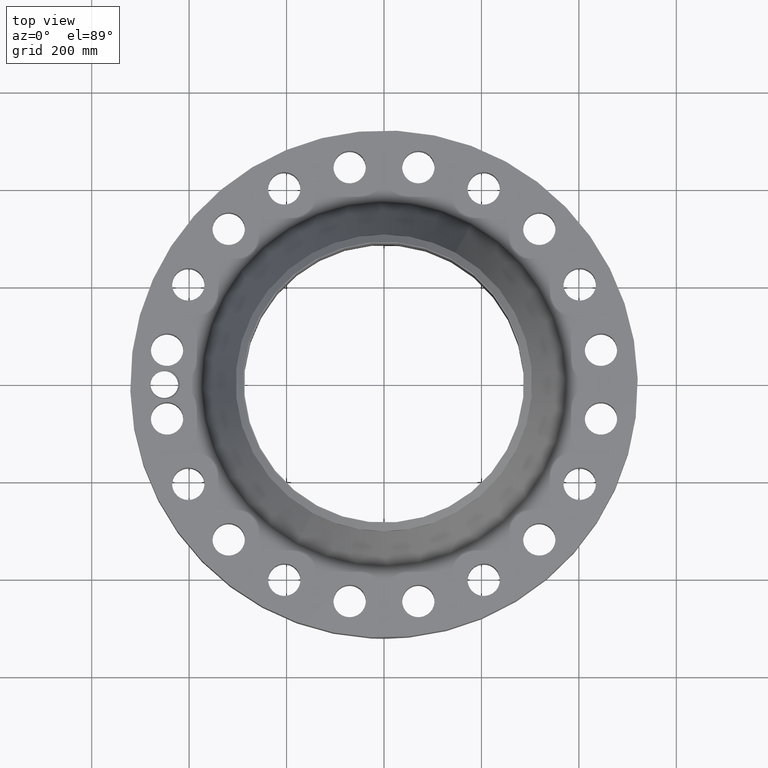
[diagram: clean part render]
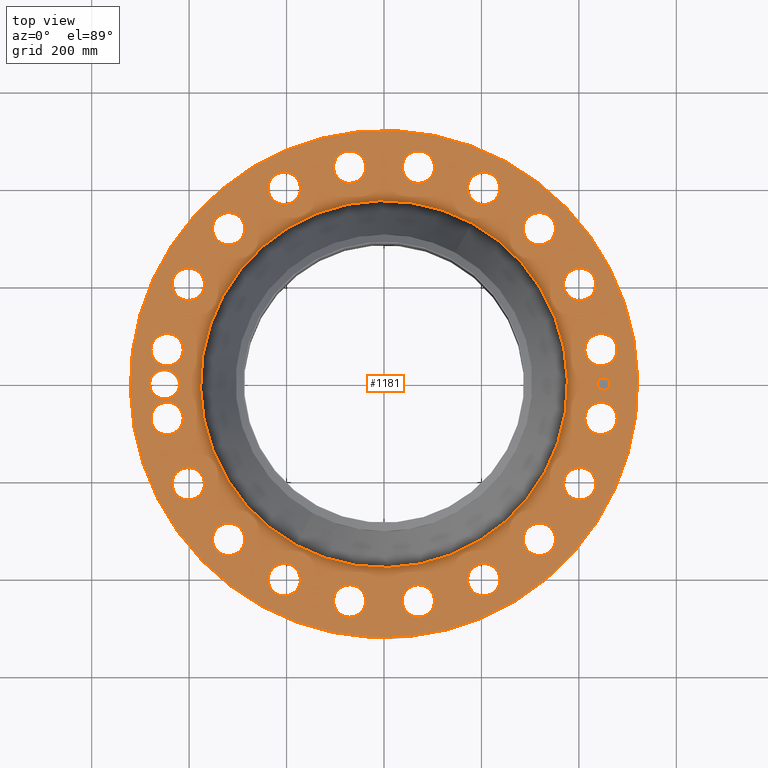
[diagram: same view with one face highlighted and labeled with its STEP entity id]
A machine part, top view. The second image highlights one B-rep face of the part: STEP entity #1181.
In plain terms, the highlighted planar face has unit normal (0, 0, -1).
Its self-contained STEP definition (entity closure, byte-faithful):
#58=AXIS2_PLACEMENT_3D('Circle Axis2P3D',#56,#57,$) ;
#618=AXIS2_PLACEMENT_3D('Circle Axis2P3D',#616,#617,$) ;
#718=AXIS2_PLACEMENT_3D('Plane Axis2P3D',#715,#716,#717) ;
#769=AXIS2_PLACEMENT_3D('Circle Axis2P3D',#767,#768,$) ;
#776=AXIS2_PLACEMENT_3D('Circle Axis2P3D',#774,#775,$) ;
#787=AXIS2_PLACEMENT_3D('Circle Axis2P3D',#785,#786,$) ;
#796=AXIS2_PLACEMENT_3D('Circle Axis2P3D',#794,#795,$) ;
#805=AXIS2_PLACEMENT_3D('Circle Axis2P3D',#803,#804,$) ;
#814=AXIS2_PLACEMENT_3D('Circle Axis2P3D',#812,#813,$) ;
#823=AXIS2_PLACEMENT_3D('Circle Axis2P3D',#821,#822,$) ;
#832=AXIS2_PLACEMENT_3D('Circle Axis2P3D',#830,#831,$) ;
#841=AXIS2_PLACEMENT_3D('Circle Axis2P3D',#839,#840,$) ;
#850=AXIS2_PLACEMENT_3D('Circle Axis2P3D',#848,#849,$) ;
#859=AXIS2_PLACEMENT_3D('Circle Axis2P3D',#857,#858,$) ;
#868=AXIS2_PLACEMENT_3D('Circle Axis2P3D',#866,#867,$) ;
#877=AXIS2_PLACEMENT_3D('Circle Axis2P3D',#875,#876,$) ;
#886=AXIS2_PLACEMENT_3D('Circle Axis2P3D',#884,#885,$) ;
#895=AXIS2_PLACEMENT_3D('Circle Axis2P3D',#893,#894,$) ;
#904=AXIS2_PLACEMENT_3D('Circle Axis2P3D',#902,#903,$) ;
#913=AXIS2_PLACEMENT_3D('Circle Axis2P3D',#911,#912,$) ;
#922=AXIS2_PLACEMENT_3D('Circle Axis2P3D',#920,#921,$) ;
#931=AXIS2_PLACEMENT_3D('Circle Axis2P3D',#929,#930,$) ;
#940=AXIS2_PLACEMENT_3D('Circle Axis2P3D',#938,#939,$) ;
#949=AXIS2_PLACEMENT_3D('Circle Axis2P3D',#947,#948,$) ;
#958=AXIS2_PLACEMENT_3D('Circle Axis2P3D',#956,#957,$) ;
#967=AXIS2_PLACEMENT_3D('Circle Axis2P3D',#965,#966,$) ;
#976=AXIS2_PLACEMENT_3D('Circle Axis2P3D',#974,#975,$) ;
#985=AXIS2_PLACEMENT_3D('Circle Axis2P3D',#983,#984,$) ;
#994=AXIS2_PLACEMENT_3D('Circle Axis2P3D',#992,#993,$) ;
#1003=AXIS2_PLACEMENT_3D('Circle Axis2P3D',#1001,#1002,$) ;
#1012=AXIS2_PLACEMENT_3D('Circle Axis2P3D',#1010,#1011,$) ;
#1021=AXIS2_PLACEMENT_3D('Circle Axis2P3D',#1019,#1020,$) ;
#1030=AXIS2_PLACEMENT_3D('Circle Axis2P3D',#1028,#1029,$) ;
#1039=AXIS2_PLACEMENT_3D('Circle Axis2P3D',#1037,#1038,$) ;
#1048=AXIS2_PLACEMENT_3D('Circle Axis2P3D',#1046,#1047,$) ;
#1057=AXIS2_PLACEMENT_3D('Circle Axis2P3D',#1055,#1056,$) ;
#1066=AXIS2_PLACEMENT_3D('Circle Axis2P3D',#1064,#1065,$) ;
#1075=AXIS2_PLACEMENT_3D('Circle Axis2P3D',#1073,#1074,$) ;
#1084=AXIS2_PLACEMENT_3D('Circle Axis2P3D',#1082,#1083,$) ;
#1093=AXIS2_PLACEMENT_3D('Circle Axis2P3D',#1091,#1092,$) ;
#1102=AXIS2_PLACEMENT_3D('Circle Axis2P3D',#1100,#1101,$) ;
#1111=AXIS2_PLACEMENT_3D('Circle Axis2P3D',#1109,#1110,$) ;
#1120=AXIS2_PLACEMENT_3D('Circle Axis2P3D',#1118,#1119,$) ;
#1129=AXIS2_PLACEMENT_3D('Circle Axis2P3D',#1127,#1128,$) ;
#1138=AXIS2_PLACEMENT_3D('Circle Axis2P3D',#1136,#1137,$) ;
#1147=AXIS2_PLACEMENT_3D('Circle Axis2P3D',#1145,#1146,$) ;
#1156=AXIS2_PLACEMENT_3D('Circle Axis2P3D',#1154,#1155,$) ;
#1165=AXIS2_PLACEMENT_3D('Circle Axis2P3D',#1163,#1164,$) ;
#1174=AXIS2_PLACEMENT_3D('Circle Axis2P3D',#1172,#1173,$) ;
#53=CARTESIAN_POINT('Vertex',(-9.82822354143,-17.9904425188,5.75000000002)) ;
#56=CARTESIAN_POINT('Axis2P3D Location',(0.,0.,5.75000000002)) ;
#60=CARTESIAN_POINT('Vertex',(9.82822354143,17.9904425188,5.75000000002)) ;
#616=CARTESIAN_POINT('Axis2P3D Location',(0.,0.,5.75000000002)) ;
#715=CARTESIAN_POINT('Axis2P3D Location',(0.,20.5000000001,5.75000000002)) ;
#725=CARTESIAN_POINT('Control Point',(-16.5000000001,-4.47585975282E-015,5.75000000002)) ;
#726=CARTESIAN_POINT('Control Point',(-16.5032552467,0.101424778768,5.75000000002)) ;
#727=CARTESIAN_POINT('Control Point',(-16.5168030301,0.20236275082,5.75000000002)) ;
#728=CARTESIAN_POINT('Control Point',(-16.540578939,0.301404848806,5.75000000002)) ;
#729=CARTESIAN_POINT('Control Point',(-16.6078705989,0.492934471086,5.75000000002)) ;
#730=CARTESIAN_POINT('Control Point',(-16.71216255,0.666307508851,5.75000000002)) ;
#731=CARTESIAN_POINT('Control Point',(-16.7729489482,0.74720755551,5.75000000002)) ;
#732=CARTESIAN_POINT('Control Point',(-16.9100052173,0.895116327461,5.75000000002)) ;
#733=CARTESIAN_POINT('Control Point',(-17.0737964624,1.01165459119,5.75000000002)) ;
#734=CARTESIAN_POINT('Control Point',(-17.1612928937,1.06115813435,5.75000000002)) ;
#735=CARTESIAN_POINT('Control Point',(-17.3055972978,1.12407480346,5.75000000002)) ;
#736=CARTESIAN_POINT('Control Point',(-17.457240894,1.16261204084,5.75000000002)) ;
#737=CARTESIAN_POINT('Control Point',(-17.5130839938,1.17332130921,5.75000000002)) ;
#738=CARTESIAN_POINT('Control Point',(-17.6058927846,1.18546274895,5.75000000002)) ;
#739=CARTESIAN_POINT('Control Point',(-17.6991693605,1.18847143106,5.75000000002)) ;
#740=CARTESIAN_POINT('Control Point',(-17.7358749565,1.1882374999,5.75000000002)) ;
#741=CARTESIAN_POINT('Control Point',(-17.7725060594,1.18658796143,5.75000000002)) ;
#742=CARTESIAN_POINT('Control Point',(-17.8089900037,1.18353081053,5.75000000002)) ;
#743=CARTESIAN_POINT('Vertex',(-16.5000000001,-4.47585975282E-015,5.75000000002)) ;
#745=CARTESIAN_POINT('Vertex',(-17.8089900037,1.18353081053,5.75000000002)) ;
#749=CARTESIAN_POINT('Control Point',(-16.5000000001,0.,5.75000000002)) ;
#750=CARTESIAN_POINT('Control Point',(-16.5032558736,-0.1014443106,5.75000000002)) ;
#751=CARTESIAN_POINT('Control Point',(-16.5168082377,-0.202401629887,5.75000000002)) ;
#752=CARTESIAN_POINT('Control Point',(-16.5405839041,-0.301441966696,5.75000000002)) ;
#753=CARTESIAN_POINT('Control Point',(-16.6078815768,-0.49299067324,5.75000000002)) ;
#754=CARTESIAN_POINT('Control Point',(-16.7121398442,-0.666296890425,5.75000000002)) ;
#755=CARTESIAN_POINT('Control Point',(-16.7729146787,-0.747169843202,5.75000000002)) ;
#756=CARTESIAN_POINT('Control Point',(-16.9099648936,-0.895071516862,5.75000000002)) ;
#757=CARTESIAN_POINT('Control Point',(-17.0736868477,-1.01158391229,5.75000000002)) ;
#758=CARTESIAN_POINT('Control Point',(-17.1611742545,-1.0610994615,5.75000000002)) ;
#759=CARTESIAN_POINT('Control Point',(-17.3394182294,-1.13885714542,5.75000000002)) ;
#760=CARTESIAN_POINT('Control Point',(-17.5289290734,-1.17941134145,5.75000000002)) ;
#761=CARTESIAN_POINT('Control Point',(-17.6223307916,-1.18997718811,5.75000000002)) ;
#762=CARTESIAN_POINT('Control Point',(-17.716046541,-1.19131454279,5.75000000002)) ;
#763=CARTESIAN_POINT('Control Point',(-17.808873954,-1.18353658902,5.75000000002)) ;
#764=CARTESIAN_POINT('Vertex',(-17.808873954,-1.18353658902,5.75000000002)) ;
#767=CARTESIAN_POINT('Axis2P3D Location',(-17.7500000001,-8.95171950564E-015,5.75000000002)) ;
#771=CARTESIAN_POINT('Vertex',(-18.7899353359,0.568119263248,5.75000000002)) ;
#774=CARTESIAN_POINT('Axis2P3D Location',(-17.7500000001,-8.95171950564E-015,5.75000000002)) ;
#785=CARTESIAN_POINT('Axis2P3D Location',(17.5314680456,-2.77671175448,5.75000000002)) ;
#789=CARTESIAN_POINT('Vertex',(16.3818348896,-2.1486642989,5.75000000002)) ;
#791=CARTESIAN_POINT('Vertex',(18.6811012017,-3.40475921005,5.75000000002)) ;
#794=CARTESIAN_POINT('Axis2P3D Location',(17.5314680456,-2.77671175448,5.75000000002)) ;
#803=CARTESIAN_POINT('Axis2P3D Location',(0.,0.,5.75000000002)) ;
#807=CARTESIAN_POINT('Vertex',(-7.10647876123,-13.008322117,5.75000000002)) ;
#809=CARTESIAN_POINT('Vertex',(7.10647876123,13.008322117,5.75000000002)) ;
#812=CARTESIAN_POINT('Axis2P3D Location',(0.,0.,5.75000000002)) ;
#821=CARTESIAN_POINT('Axis2P3D Location',(15.8153658044,-8.05833137041,5.75000000002)) ;
#825=CARTESIAN_POINT('Vertex',(16.7146545718,-9.0108961781,5.75000000002)) ;
#827=CARTESIAN_POINT('Vertex',(14.916077037,-7.10576656272,5.75000000002)) ;
#830=CARTESIAN_POINT('Axis2P3D Location',(15.8153658044,-8.05833137041,5.75000000002)) ;
#839=CARTESIAN_POINT('Axis2P3D Location',(12.5511453661,-12.5511453661,5.75000000002)) ;
#843=CARTESIAN_POINT('Vertex',(13.1120610946,-13.7349838456,5.75000000002)) ;
#845=CARTESIAN_POINT('Vertex',(11.9902296377,-11.3673068866,5.75000000002)) ;
#848=CARTESIAN_POINT('Axis2P3D Location',(12.5511453661,-12.5511453661,5.75000000002)) ;
#857=CARTESIAN_POINT('Axis2P3D Location',(8.05833137041,-15.8153658044,5.75000000002)) ;
#861=CARTESIAN_POINT('Vertex',(8.22596772027,-17.1145955971,5.75000000002)) ;
#863=CARTESIAN_POINT('Vertex',(7.89069502055,-14.5161360117,5.75000000002)) ;
#866=CARTESIAN_POINT('Axis2P3D Location',(8.05833137041,-15.8153658044,5.75000000002)) ;
#875=CARTESIAN_POINT('Axis2P3D Location',(2.77671175448,-17.5314680456,5.75000000002)) ;
#879=CARTESIAN_POINT('Vertex',(2.53465931183,-18.8189114871,5.75000000002)) ;
#881=CARTESIAN_POINT('Vertex',(3.01876419712,-16.2440246041,5.75000000002)) ;
#884=CARTESIAN_POINT('Axis2P3D Location',(2.77671175448,-17.5314680456,5.75000000002)) ;
#893=CARTESIAN_POINT('Axis2P3D Location',(-2.77671175448,-17.5314680456,5.75000000002)) ;
#897=CARTESIAN_POINT('Vertex',(-3.40475921005,-18.6811012017,5.75000000002)) ;
#899=CARTESIAN_POINT('Vertex',(-2.1486642989,-16.3818348896,5.75000000002)) ;
#902=CARTESIAN_POINT('Axis2P3D Location',(-2.77671175448,-17.5314680456,5.75000000002)) ;
#911=CARTESIAN_POINT('Axis2P3D Location',(-8.05833137041,-15.8153658044,5.75000000002)) ;
#915=CARTESIAN_POINT('Vertex',(-9.0108961781,-16.7146545718,5.75000000002)) ;
#917=CARTESIAN_POINT('Vertex',(-7.10576656272,-14.916077037,5.75000000002)) ;
#920=CARTESIAN_POINT('Axis2P3D Location',(-8.05833137041,-15.8153658044,5.75000000002)) ;
#929=CARTESIAN_POINT('Axis2P3D Location',(-12.5511453661,-12.5511453661,5.75000000002)) ;
#933=CARTESIAN_POINT('Vertex',(-13.7349838456,-13.1120610946,5.75000000002)) ;
#935=CARTESIAN_POINT('Vertex',(-11.3673068866,-11.9902296377,5.75000000002)) ;
#938=CARTESIAN_POINT('Axis2P3D Location',(-12.5511453661,-12.5511453661,5.75000000002)) ;
#947=CARTESIAN_POINT('Axis2P3D Location',(-15.8153658044,-8.05833137041,5.75000000002)) ;
#951=CARTESIAN_POINT('Vertex',(-17.1145955971,-8.22596772027,5.75000000002)) ;
#953=CARTESIAN_POINT('Vertex',(-14.5161360117,-7.89069502055,5.75000000002)) ;
#956=CARTESIAN_POINT('Axis2P3D Location',(-15.8153658044,-8.05833137041,5.75000000002)) ;
#965=CARTESIAN_POINT('Axis2P3D Location',(-17.5314680456,-2.77671175448,5.75000000002)) ;
#969=CARTESIAN_POINT('Vertex',(-18.8189114871,-2.53465931183,5.75000000002)) ;
#971=CARTESIAN_POINT('Vertex',(-16.2440246041,-3.01876419712,5.75000000002)) ;
#974=CARTESIAN_POINT('Axis2P3D Location',(-17.5314680456,-2.77671175448,5.75000000002)) ;
#983=CARTESIAN_POINT('Axis2P3D Location',(-17.5314680456,2.77671175448,5.75000000002)) ;
#987=CARTESIAN_POINT('Vertex',(-18.6811012017,3.40475921005,5.75000000002)) ;
#989=CARTESIAN_POINT('Vertex',(-16.3818348896,2.1486642989,5.75000000002)) ;
#992=CARTESIAN_POINT('Axis2P3D Location',(-17.5314680456,2.77671175448,5.75000000002)) ;
#1001=CARTESIAN_POINT('Axis2P3D Location',(-15.8153658044,8.05833137041,5.75000000002)) ;
#1005=CARTESIAN_POINT('Vertex',(-16.7146545718,9.0108961781,5.75000000002)) ;
#1007=CARTESIAN_POINT('Vertex',(-14.916077037,7.10576656272,5.75000000002)) ;
#1010=CARTESIAN_POINT('Axis2P3D Location',(-15.8153658044,8.05833137041,5.75000000002)) ;
#1019=CARTESIAN_POINT('Axis2P3D Location',(-12.5511453661,12.5511453661,5.75000000002)) ;
#1023=CARTESIAN_POINT('Vertex',(-13.1120610946,13.7349838456,5.75000000002)) ;
#1025=CARTESIAN_POINT('Vertex',(-11.9902296377,11.3673068866,5.75000000002)) ;
#1028=CARTESIAN_POINT('Axis2P3D Location',(-12.5511453661,12.5511453661,5.75000000002)) ;
#1037=CARTESIAN_POINT('Axis2P3D Location',(-8.05833137041,15.8153658044,5.75000000002)) ;
#1041=CARTESIAN_POINT('Vertex',(-8.22596772027,17.1145955971,5.75000000002)) ;
#1043=CARTESIAN_POINT('Vertex',(-7.89069502055,14.5161360117,5.75000000002)) ;
#1046=CARTESIAN_POINT('Axis2P3D Location',(-8.05833137041,15.8153658044,5.75000000002)) ;
#1055=CARTESIAN_POINT('Axis2P3D Location',(-2.77671175448,17.5314680456,5.75000000002)) ;
#1059=CARTESIAN_POINT('Vertex',(-2.53465931183,18.8189114871,5.75000000002)) ;
#1061=CARTESIAN_POINT('Vertex',(-3.01876419712,16.2440246041,5.75000000002)) ;
#1064=CARTESIAN_POINT('Axis2P3D Location',(-2.77671175448,17.5314680456,5.75000000002)) ;
#1073=CARTESIAN_POINT('Axis2P3D Location',(2.77671175448,17.5314680456,5.75000000002)) ;
#1077=CARTESIAN_POINT('Vertex',(3.40475921005,18.6811012017,5.75000000002)) ;
#1079=CARTESIAN_POINT('Vertex',(2.1486642989,16.3818348896,5.75000000002)) ;
#1082=CARTESIAN_POINT('Axis2P3D Location',(2.77671175448,17.5314680456,5.75000000002)) ;
#1091=CARTESIAN_POINT('Axis2P3D Location',(8.05833137041,15.8153658044,5.75000000002)) ;
#1095=CARTESIAN_POINT('Vertex',(9.0108961781,16.7146545718,5.75000000002)) ;
#1097=CARTESIAN_POINT('Vertex',(7.10576656272,14.916077037,5.75000000002)) ;
#1100=CARTESIAN_POINT('Axis2P3D Location',(8.05833137041,15.8153658044,5.75000000002)) ;
#1109=CARTESIAN_POINT('Axis2P3D Location',(12.5511453661,12.5511453661,5.75000000002)) ;
#1113=CARTESIAN_POINT('Vertex',(13.7349838456,13.1120610946,5.75000000002)) ;
#1115=CARTESIAN_POINT('Vertex',(11.3673068866,11.9902296377,5.75000000002)) ;
#1118=CARTESIAN_POINT('Axis2P3D Location',(12.5511453661,12.5511453661,5.75000000002)) ;
#1127=CARTESIAN_POINT('Axis2P3D Location',(15.8153658044,8.05833137041,5.75000000002)) ;
#1131=CARTESIAN_POINT('Vertex',(17.1145955971,8.22596772027,5.75000000002)) ;
#1133=CARTESIAN_POINT('Vertex',(14.5161360117,7.89069502055,5.75000000002)) ;
#1136=CARTESIAN_POINT('Axis2P3D Location',(15.8153658044,8.05833137041,5.75000000002)) ;
#1145=CARTESIAN_POINT('Axis2P3D Location',(17.5314680456,2.77671175448,5.75000000002)) ;
#1149=CARTESIAN_POINT('Vertex',(18.8189114871,2.53465931183,5.75000000002)) ;
#1151=CARTESIAN_POINT('Vertex',(16.2440246041,3.01876419712,5.75000000002)) ;
#1154=CARTESIAN_POINT('Axis2P3D Location',(17.5314680456,2.77671175448,5.75000000002)) ;
#1163=CARTESIAN_POINT('Axis2P3D Location',(17.7500000001,-1.52179231596E-013,5.75000000002)) ;
#1167=CARTESIAN_POINT('Vertex',(17.7500000001,0.499999995002,5.75000000002)) ;
#1169=CARTESIAN_POINT('Vertex',(17.7500000001,-0.499999995002,5.75000000002)) ;
#1172=CARTESIAN_POINT('Axis2P3D Location',(17.7500000001,-1.47703371843E-013,5.75000000002)) ;
#57=DIRECTION('Axis2P3D Direction',(0.,0.,-0.0393700787402)) ;
#617=DIRECTION('Axis2P3D Direction',(0.,0.,-0.0393700787402)) ;
#716=DIRECTION('Axis2P3D Direction',(0.,0.,-0.0393700787402)) ;
#717=DIRECTION('Axis2P3D XDirection',(0.0393700787402,0.,0.)) ;
#768=DIRECTION('Axis2P3D Direction',(0.,0.,-0.0393700787402)) ;
#775=DIRECTION('Axis2P3D Direction',(0.,0.,-0.0393700787402)) ;
#786=DIRECTION('Axis2P3D Direction',(0.,0.,-0.0393700787402)) ;
#795=DIRECTION('Axis2P3D Direction',(0.,0.,-0.0393700787402)) ;
#804=DIRECTION('Axis2P3D Direction',(0.,0.,-0.0393700787402)) ;
#813=DIRECTION('Axis2P3D Direction',(0.,0.,-0.0393700787402)) ;
#822=DIRECTION('Axis2P3D Direction',(0.,0.,-0.0393700787402)) ;
#831=DIRECTION('Axis2P3D Direction',(0.,0.,-0.0393700787402)) ;
#840=DIRECTION('Axis2P3D Direction',(0.,0.,-0.0393700787402)) ;
#849=DIRECTION('Axis2P3D Direction',(0.,0.,-0.0393700787402)) ;
#858=DIRECTION('Axis2P3D Direction',(0.,0.,-0.0393700787402)) ;
#867=DIRECTION('Axis2P3D Direction',(0.,0.,-0.0393700787402)) ;
#876=DIRECTION('Axis2P3D Direction',(0.,0.,-0.0393700787402)) ;
#885=DIRECTION('Axis2P3D Direction',(0.,0.,-0.0393700787402)) ;
#894=DIRECTION('Axis2P3D Direction',(0.,0.,-0.0393700787402)) ;
#903=DIRECTION('Axis2P3D Direction',(0.,0.,-0.0393700787402)) ;
#912=DIRECTION('Axis2P3D Direction',(0.,0.,-0.0393700787402)) ;
#921=DIRECTION('Axis2P3D Direction',(0.,0.,-0.0393700787402)) ;
#930=DIRECTION('Axis2P3D Direction',(0.,0.,-0.0393700787402)) ;
#939=DIRECTION('Axis2P3D Direction',(0.,0.,-0.0393700787402)) ;
#948=DIRECTION('Axis2P3D Direction',(0.,0.,-0.0393700787402)) ;
#957=DIRECTION('Axis2P3D Direction',(0.,0.,-0.0393700787402)) ;
#966=DIRECTION('Axis2P3D Direction',(0.,0.,-0.0393700787402)) ;
#975=DIRECTION('Axis2P3D Direction',(0.,0.,-0.0393700787402)) ;
#984=DIRECTION('Axis2P3D Direction',(0.,0.,-0.0393700787402)) ;
#993=DIRECTION('Axis2P3D Direction',(0.,0.,-0.0393700787402)) ;
#1002=DIRECTION('Axis2P3D Direction',(0.,0.,-0.0393700787402)) ;
#1011=DIRECTION('Axis2P3D Direction',(0.,0.,-0.0393700787402)) ;
#1020=DIRECTION('Axis2P3D Direction',(0.,0.,-0.0393700787402)) ;
#1029=DIRECTION('Axis2P3D Direction',(0.,0.,-0.0393700787402)) ;
#1038=DIRECTION('Axis2P3D Direction',(0.,0.,-0.0393700787402)) ;
#1047=DIRECTION('Axis2P3D Direction',(0.,0.,-0.0393700787402)) ;
#1056=DIRECTION('Axis2P3D Direction',(0.,0.,-0.0393700787402)) ;
#1065=DIRECTION('Axis2P3D Direction',(0.,0.,-0.0393700787402)) ;
#1074=DIRECTION('Axis2P3D Direction',(0.,0.,-0.0393700787402)) ;
#1083=DIRECTION('Axis2P3D Direction',(0.,0.,-0.0393700787402)) ;
#1092=DIRECTION('Axis2P3D Direction',(0.,0.,-0.0393700787402)) ;
#1101=DIRECTION('Axis2P3D Direction',(0.,0.,-0.0393700787402)) ;
#1110=DIRECTION('Axis2P3D Direction',(0.,0.,-0.0393700787402)) ;
#1119=DIRECTION('Axis2P3D Direction',(0.,0.,-0.0393700787402)) ;
#1128=DIRECTION('Axis2P3D Direction',(0.,0.,-0.0393700787402)) ;
#1137=DIRECTION('Axis2P3D Direction',(0.,0.,-0.0393700787402)) ;
#1146=DIRECTION('Axis2P3D Direction',(0.,0.,-0.0393700787402)) ;
#1155=DIRECTION('Axis2P3D Direction',(0.,0.,-0.0393700787402)) ;
#1164=DIRECTION('Axis2P3D Direction',(0.,0.,-0.0393700787402)) ;
#1173=DIRECTION('Axis2P3D Direction',(0.,0.,-0.0393700787402)) ;
#721=ORIENTED_EDGE('',*,*,#620,.F.) ;
#722=ORIENTED_EDGE('',*,*,#62,.F.) ;
#780=ORIENTED_EDGE('',*,*,#747,.F.) ;
#781=ORIENTED_EDGE('',*,*,#766,.T.) ;
#782=ORIENTED_EDGE('',*,*,#773,.T.) ;
#783=ORIENTED_EDGE('',*,*,#778,.T.) ;
#800=ORIENTED_EDGE('',*,*,#793,.T.) ;
#801=ORIENTED_EDGE('',*,*,#798,.T.) ;
#818=ORIENTED_EDGE('',*,*,#811,.T.) ;
#819=ORIENTED_EDGE('',*,*,#816,.T.) ;
#836=ORIENTED_EDGE('',*,*,#829,.T.) ;
#837=ORIENTED_EDGE('',*,*,#834,.T.) ;
#854=ORIENTED_EDGE('',*,*,#847,.T.) ;
#855=ORIENTED_EDGE('',*,*,#852,.T.) ;
#872=ORIENTED_EDGE('',*,*,#865,.T.) ;
#873=ORIENTED_EDGE('',*,*,#870,.T.) ;
#890=ORIENTED_EDGE('',*,*,#883,.T.) ;
#891=ORIENTED_EDGE('',*,*,#888,.T.) ;
#908=ORIENTED_EDGE('',*,*,#901,.T.) ;
#909=ORIENTED_EDGE('',*,*,#906,.T.) ;
#926=ORIENTED_EDGE('',*,*,#919,.T.) ;
#927=ORIENTED_EDGE('',*,*,#924,.T.) ;
#944=ORIENTED_EDGE('',*,*,#937,.T.) ;
#945=ORIENTED_EDGE('',*,*,#942,.T.) ;
#962=ORIENTED_EDGE('',*,*,#955,.T.) ;
#963=ORIENTED_EDGE('',*,*,#960,.T.) ;
#980=ORIENTED_EDGE('',*,*,#973,.T.) ;
#981=ORIENTED_EDGE('',*,*,#978,.T.) ;
#998=ORIENTED_EDGE('',*,*,#991,.T.) ;
#999=ORIENTED_EDGE('',*,*,#996,.T.) ;
#1016=ORIENTED_EDGE('',*,*,#1009,.T.) ;
#1017=ORIENTED_EDGE('',*,*,#1014,.T.) ;
#1034=ORIENTED_EDGE('',*,*,#1027,.T.) ;
#1035=ORIENTED_EDGE('',*,*,#1032,.T.) ;
#1052=ORIENTED_EDGE('',*,*,#1045,.T.) ;
#1053=ORIENTED_EDGE('',*,*,#1050,.T.) ;
#1070=ORIENTED_EDGE('',*,*,#1063,.T.) ;
#1071=ORIENTED_EDGE('',*,*,#1068,.T.) ;
#1088=ORIENTED_EDGE('',*,*,#1081,.T.) ;
#1089=ORIENTED_EDGE('',*,*,#1086,.T.) ;
#1106=ORIENTED_EDGE('',*,*,#1099,.T.) ;
#1107=ORIENTED_EDGE('',*,*,#1104,.T.) ;
#1124=ORIENTED_EDGE('',*,*,#1117,.T.) ;
#1125=ORIENTED_EDGE('',*,*,#1122,.T.) ;
#1142=ORIENTED_EDGE('',*,*,#1135,.T.) ;
#1143=ORIENTED_EDGE('',*,*,#1140,.T.) ;
#1160=ORIENTED_EDGE('',*,*,#1153,.T.) ;
#1161=ORIENTED_EDGE('',*,*,#1158,.T.) ;
#1178=ORIENTED_EDGE('',*,*,#1171,.T.) ;
#1179=ORIENTED_EDGE('',*,*,#1176,.T.) ;
#784=FACE_BOUND('',#779,.T.) ;
#802=FACE_BOUND('',#799,.T.) ;
#820=FACE_BOUND('',#817,.T.) ;
#838=FACE_BOUND('',#835,.T.) ;
#856=FACE_BOUND('',#853,.T.) ;
#874=FACE_BOUND('',#871,.T.) ;
#892=FACE_BOUND('',#889,.T.) ;
#910=FACE_BOUND('',#907,.T.) ;
#928=FACE_BOUND('',#925,.T.) ;
#946=FACE_BOUND('',#943,.T.) ;
#964=FACE_BOUND('',#961,.T.) ;
#982=FACE_BOUND('',#979,.T.) ;
#1000=FACE_BOUND('',#997,.T.) ;
#1018=FACE_BOUND('',#1015,.T.) ;
#1036=FACE_BOUND('',#1033,.T.) ;
#1054=FACE_BOUND('',#1051,.T.) ;
#1072=FACE_BOUND('',#1069,.T.) ;
#1090=FACE_BOUND('',#1087,.T.) ;
#1108=FACE_BOUND('',#1105,.T.) ;
#1126=FACE_BOUND('',#1123,.T.) ;
#1144=FACE_BOUND('',#1141,.T.) ;
#1162=FACE_BOUND('',#1159,.T.) ;
#1180=FACE_BOUND('',#1177,.T.) ;
#1181=ADVANCED_FACE('PartBody',(#723,#784,#802,#820,#838,#856,#874,#892,#910,#928,#946,#964,#982,#1000,#1018,#1036,#1054,#1072,#1090,#1108,#1126,#1144,#1162,#1180),#719,.F.) ;
#724=B_SPLINE_CURVE_WITH_KNOTS('',5,(#725,#726,#727,#728,#729,#730,#731,#732,#733,#734,#735,#736,#737,#738,#739,#740,#741,#742),.UNSPECIFIED.,.F.,.U.,(6,3,3,3,3,6),(0.,17.7849902183,35.5728343444,53.3542627377,63.5114918399,70.1022239985),.UNSPECIFIED.) ;
#748=B_SPLINE_CURVE_WITH_KNOTS('',5,(#749,#750,#751,#752,#753,#754,#755,#756,#757,#758,#759,#760,#761,#762,#763),.UNSPECIFIED.,.F.,.U.,(6,3,3,3,6),(0.,17.7884151551,35.5917838772,53.4045663694,70.1678728043),.UNSPECIFIED.) ;
#59=CIRCLE('generated circle',#58,20.5000000001) ;
#619=CIRCLE('generated circle',#618,20.5000000001) ;
#770=CIRCLE('generated circle',#769,1.185) ;
#777=CIRCLE('generated circle',#776,1.185) ;
#788=CIRCLE('generated circle',#787,1.31000000001) ;
#797=CIRCLE('generated circle',#796,1.31000000001) ;
#806=CIRCLE('generated circle',#805,14.8229040571) ;
#815=CIRCLE('generated circle',#814,14.8229040571) ;
#824=CIRCLE('generated circle',#823,1.31000000001) ;
#833=CIRCLE('generated circle',#832,1.31000000001) ;
#842=CIRCLE('generated circle',#841,1.31000000001) ;
#851=CIRCLE('generated circle',#850,1.31000000001) ;
#860=CIRCLE('generated circle',#859,1.31000000001) ;
#869=CIRCLE('generated circle',#868,1.31000000001) ;
#878=CIRCLE('generated circle',#877,1.31000000001) ;
#887=CIRCLE('generated circle',#886,1.31000000001) ;
#896=CIRCLE('generated circle',#895,1.31000000001) ;
#905=CIRCLE('generated circle',#904,1.31000000001) ;
#914=CIRCLE('generated circle',#913,1.31000000001) ;
#923=CIRCLE('generated circle',#922,1.31000000001) ;
#932=CIRCLE('generated circle',#931,1.31000000001) ;
#941=CIRCLE('generated circle',#940,1.31000000001) ;
#950=CIRCLE('generated circle',#949,1.31000000001) ;
#959=CIRCLE('generated circle',#958,1.31000000001) ;
#968=CIRCLE('generated circle',#967,1.31000000001) ;
#977=CIRCLE('generated circle',#976,1.31000000001) ;
#986=CIRCLE('generated circle',#985,1.31000000001) ;
#995=CIRCLE('generated circle',#994,1.31000000001) ;
#1004=CIRCLE('generated circle',#1003,1.31000000001) ;
#1013=CIRCLE('generated circle',#1012,1.31000000001) ;
#1022=CIRCLE('generated circle',#1021,1.31000000001) ;
#1031=CIRCLE('generated circle',#1030,1.31000000001) ;
#1040=CIRCLE('generated circle',#1039,1.31000000001) ;
#1049=CIRCLE('generated circle',#1048,1.31000000001) ;
#1058=CIRCLE('generated circle',#1057,1.31000000001) ;
#1067=CIRCLE('generated circle',#1066,1.31000000001) ;
#1076=CIRCLE('generated circle',#1075,1.31000000001) ;
#1085=CIRCLE('generated circle',#1084,1.31000000001) ;
#1094=CIRCLE('generated circle',#1093,1.31000000001) ;
#1103=CIRCLE('generated circle',#1102,1.31000000001) ;
#1112=CIRCLE('generated circle',#1111,1.31000000001) ;
#1121=CIRCLE('generated circle',#1120,1.31000000001) ;
#1130=CIRCLE('generated circle',#1129,1.31000000001) ;
#1139=CIRCLE('generated circle',#1138,1.31000000001) ;
#1148=CIRCLE('generated circle',#1147,1.31000000001) ;
#1157=CIRCLE('generated circle',#1156,1.31000000001) ;
#1166=CIRCLE('generated circle',#1165,0.499999995002) ;
#1175=CIRCLE('generated circle',#1174,0.499999995002) ;
#62=EDGE_CURVE('',#54,#61,#59,.T.) ;
#620=EDGE_CURVE('',#61,#54,#619,.T.) ;
#747=EDGE_CURVE('',#744,#746,#724,.T.) ;
#766=EDGE_CURVE('',#744,#765,#748,.T.) ;
#773=EDGE_CURVE('',#765,#772,#770,.T.) ;
#778=EDGE_CURVE('',#772,#746,#777,.T.) ;
#793=EDGE_CURVE('',#790,#792,#788,.T.) ;
#798=EDGE_CURVE('',#792,#790,#797,.T.) ;
#811=EDGE_CURVE('',#808,#810,#806,.T.) ;
#816=EDGE_CURVE('',#810,#808,#815,.T.) ;
#829=EDGE_CURVE('',#826,#828,#824,.T.) ;
#834=EDGE_CURVE('',#828,#826,#833,.T.) ;
#847=EDGE_CURVE('',#844,#846,#842,.T.) ;
#852=EDGE_CURVE('',#846,#844,#851,.T.) ;
#865=EDGE_CURVE('',#862,#864,#860,.T.) ;
#870=EDGE_CURVE('',#864,#862,#869,.T.) ;
#883=EDGE_CURVE('',#880,#882,#878,.T.) ;
#888=EDGE_CURVE('',#882,#880,#887,.T.) ;
#901=EDGE_CURVE('',#898,#900,#896,.T.) ;
#906=EDGE_CURVE('',#900,#898,#905,.T.) ;
#919=EDGE_CURVE('',#916,#918,#914,.T.) ;
#924=EDGE_CURVE('',#918,#916,#923,.T.) ;
#937=EDGE_CURVE('',#934,#936,#932,.T.) ;
#942=EDGE_CURVE('',#936,#934,#941,.T.) ;
#955=EDGE_CURVE('',#952,#954,#950,.T.) ;
#960=EDGE_CURVE('',#954,#952,#959,.T.) ;
#973=EDGE_CURVE('',#970,#972,#968,.T.) ;
#978=EDGE_CURVE('',#972,#970,#977,.T.) ;
#991=EDGE_CURVE('',#988,#990,#986,.T.) ;
#996=EDGE_CURVE('',#990,#988,#995,.T.) ;
#1009=EDGE_CURVE('',#1006,#1008,#1004,.T.) ;
#1014=EDGE_CURVE('',#1008,#1006,#1013,.T.) ;
#1027=EDGE_CURVE('',#1024,#1026,#1022,.T.) ;
#1032=EDGE_CURVE('',#1026,#1024,#1031,.T.) ;
#1045=EDGE_CURVE('',#1042,#1044,#1040,.T.) ;
#1050=EDGE_CURVE('',#1044,#1042,#1049,.T.) ;
#1063=EDGE_CURVE('',#1060,#1062,#1058,.T.) ;
#1068=EDGE_CURVE('',#1062,#1060,#1067,.T.) ;
#1081=EDGE_CURVE('',#1078,#1080,#1076,.T.) ;
#1086=EDGE_CURVE('',#1080,#1078,#1085,.T.) ;
#1099=EDGE_CURVE('',#1096,#1098,#1094,.T.) ;
#1104=EDGE_CURVE('',#1098,#1096,#1103,.T.) ;
#1117=EDGE_CURVE('',#1114,#1116,#1112,.T.) ;
#1122=EDGE_CURVE('',#1116,#1114,#1121,.T.) ;
#1135=EDGE_CURVE('',#1132,#1134,#1130,.T.) ;
#1140=EDGE_CURVE('',#1134,#1132,#1139,.T.) ;
#1153=EDGE_CURVE('',#1150,#1152,#1148,.T.) ;
#1158=EDGE_CURVE('',#1152,#1150,#1157,.T.) ;
#1171=EDGE_CURVE('',#1168,#1170,#1166,.T.) ;
#1176=EDGE_CURVE('',#1170,#1168,#1175,.T.) ;
#720=EDGE_LOOP('',(#721,#722)) ;
#779=EDGE_LOOP('',(#780,#781,#782,#783)) ;
#799=EDGE_LOOP('',(#800,#801)) ;
#817=EDGE_LOOP('',(#818,#819)) ;
#835=EDGE_LOOP('',(#836,#837)) ;
#853=EDGE_LOOP('',(#854,#855)) ;
#871=EDGE_LOOP('',(#872,#873)) ;
#889=EDGE_LOOP('',(#890,#891)) ;
#907=EDGE_LOOP('',(#908,#909)) ;
#925=EDGE_LOOP('',(#926,#927)) ;
#943=EDGE_LOOP('',(#944,#945)) ;
#961=EDGE_LOOP('',(#962,#963)) ;
#979=EDGE_LOOP('',(#980,#981)) ;
#997=EDGE_LOOP('',(#998,#999)) ;
#1015=EDGE_LOOP('',(#1016,#1017)) ;
#1033=EDGE_LOOP('',(#1034,#1035)) ;
#1051=EDGE_LOOP('',(#1052,#1053)) ;
#1069=EDGE_LOOP('',(#1070,#1071)) ;
#1087=EDGE_LOOP('',(#1088,#1089)) ;
#1105=EDGE_LOOP('',(#1106,#1107)) ;
#1123=EDGE_LOOP('',(#1124,#1125)) ;
#1141=EDGE_LOOP('',(#1142,#1143)) ;
#1159=EDGE_LOOP('',(#1160,#1161)) ;
#1177=EDGE_LOOP('',(#1178,#1179)) ;
#723=FACE_OUTER_BOUND('',#720,.T.) ;
#719=PLANE('',#718) ;
#54=VERTEX_POINT('',#53) ;
#61=VERTEX_POINT('',#60) ;
#744=VERTEX_POINT('',#743) ;
#746=VERTEX_POINT('',#745) ;
#765=VERTEX_POINT('',#764) ;
#772=VERTEX_POINT('',#771) ;
#790=VERTEX_POINT('',#789) ;
#792=VERTEX_POINT('',#791) ;
#808=VERTEX_POINT('',#807) ;
#810=VERTEX_POINT('',#809) ;
#826=VERTEX_POINT('',#825) ;
#828=VERTEX_POINT('',#827) ;
#844=VERTEX_POINT('',#843) ;
#846=VERTEX_POINT('',#845) ;
#862=VERTEX_POINT('',#861) ;
#864=VERTEX_POINT('',#863) ;
#880=VERTEX_POINT('',#879) ;
#882=VERTEX_POINT('',#881) ;
#898=VERTEX_POINT('',#897) ;
#900=VERTEX_POINT('',#899) ;
#916=VERTEX_POINT('',#915) ;
#918=VERTEX_POINT('',#917) ;
#934=VERTEX_POINT('',#933) ;
#936=VERTEX_POINT('',#935) ;
#952=VERTEX_POINT('',#951) ;
#954=VERTEX_POINT('',#953) ;
#970=VERTEX_POINT('',#969) ;
#972=VERTEX_POINT('',#971) ;
#988=VERTEX_POINT('',#987) ;
#990=VERTEX_POINT('',#989) ;
#1006=VERTEX_POINT('',#1005) ;
#1008=VERTEX_POINT('',#1007) ;
#1024=VERTEX_POINT('',#1023) ;
#1026=VERTEX_POINT('',#1025) ;
#1042=VERTEX_POINT('',#1041) ;
#1044=VERTEX_POINT('',#1043) ;
#1060=VERTEX_POINT('',#1059) ;
#1062=VERTEX_POINT('',#1061) ;
#1078=VERTEX_POINT('',#1077) ;
#1080=VERTEX_POINT('',#1079) ;
#1096=VERTEX_POINT('',#1095) ;
#1098=VERTEX_POINT('',#1097) ;
#1114=VERTEX_POINT('',#1113) ;
#1116=VERTEX_POINT('',#1115) ;
#1132=VERTEX_POINT('',#1131) ;
#1134=VERTEX_POINT('',#1133) ;
#1150=VERTEX_POINT('',#1149) ;
#1152=VERTEX_POINT('',#1151) ;
#1168=VERTEX_POINT('',#1167) ;
#1170=VERTEX_POINT('',#1169) ;